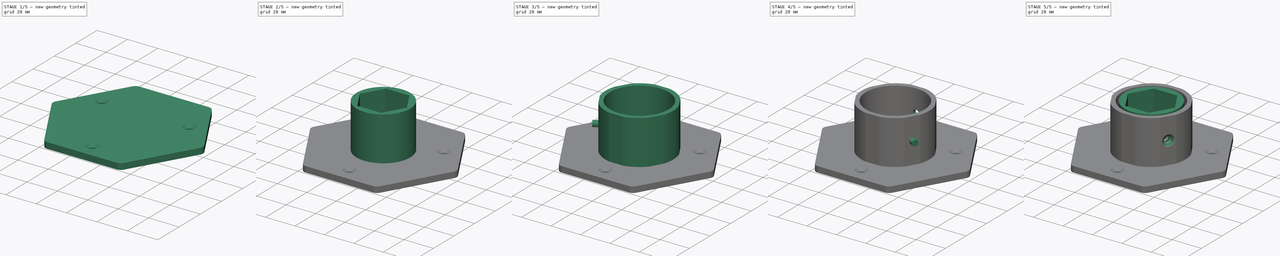
[diagram: build sequence overview — one tinted view per stage of 5, left to right]
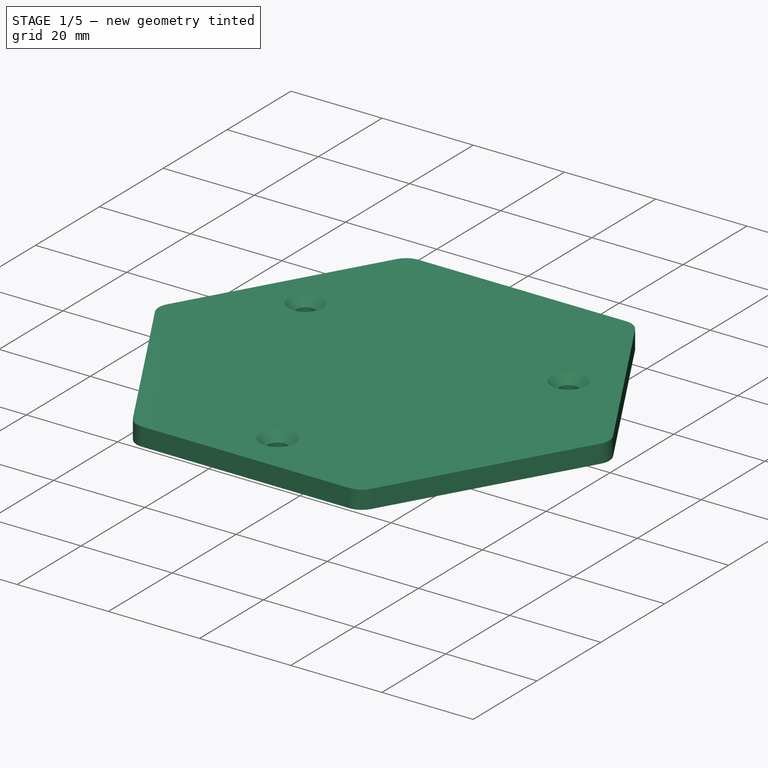
[diagram: stage 1 of 5 — iso view after this stage's code; geometry added in this stage tinted green]
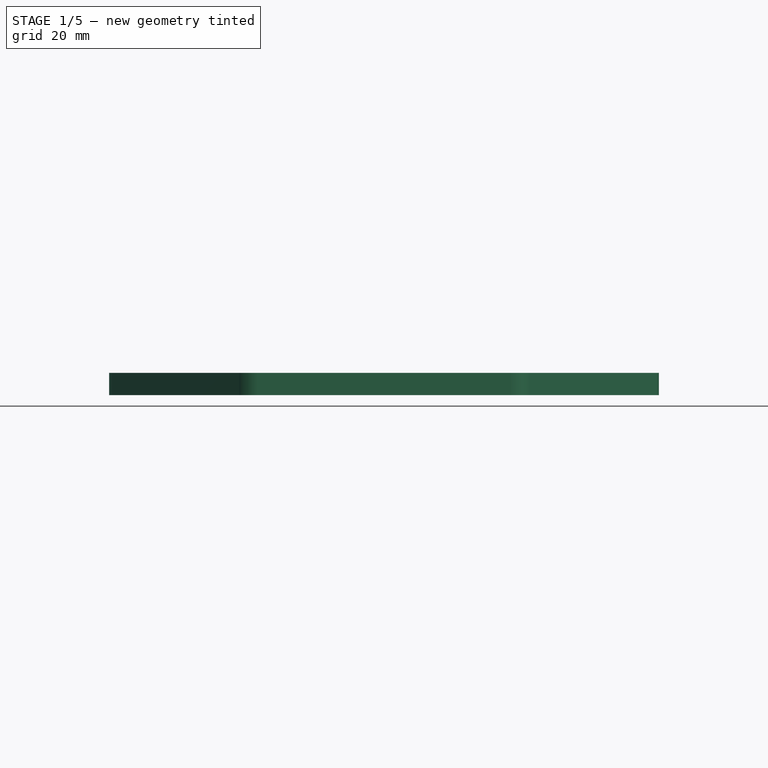
[diagram: stage 1 of 5 — front view after this stage's code; geometry added in this stage tinted green]
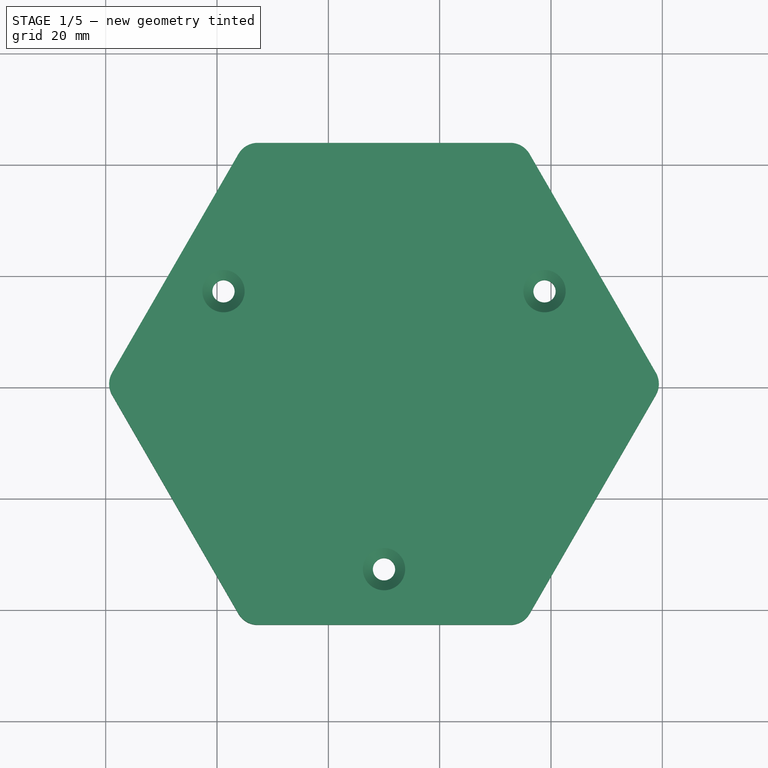
[diagram: stage 1 of 5 — top view after this stage's code; geometry added in this stage tinted green]
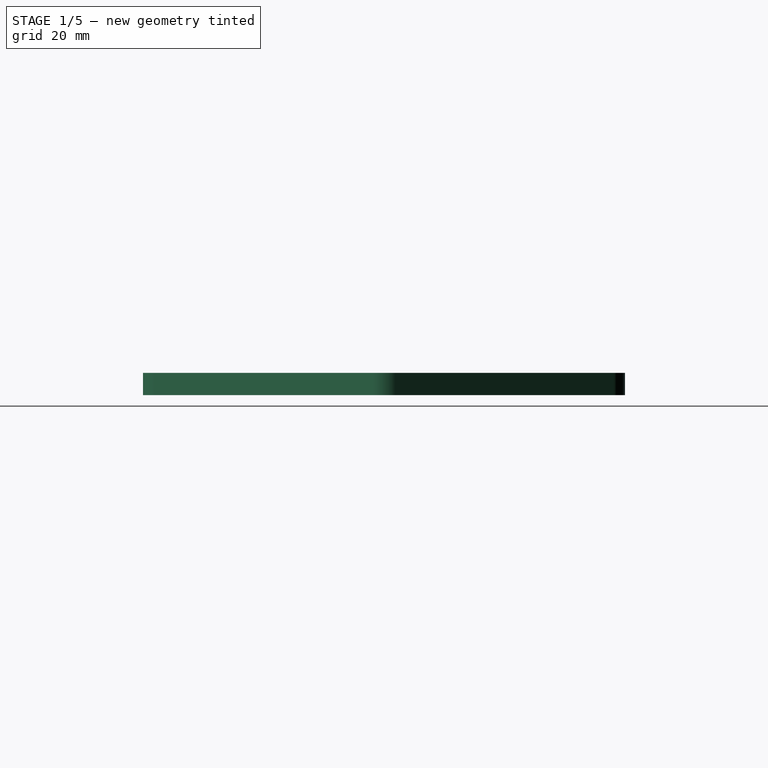
[diagram: stage 1 of 5 — right view after this stage's code; geometry added in this stage tinted green]
FCSTD DOCUMENT  (FreeCAD 0.20R29177 (Git))
Label: TableLeg_Mount
License: All rights reserved
LicenseURL: http://en.wikipedia.org/wiki/All_rights_reserved
objects: Sketcher::SketchObject×10, Part::Extrusion×10, Part::Cut×10, App::MeasureDistance×4, Part::Chamfer×2, Part::Fillet×1
note: 33 computed .brp shape members not serialized (recipe doc carries the construction recipe); baked Part::Feature solids carry a one-line shape summary decoded from their .brp

FEATURE [Sketcher::SketchObject] Sketch
  FullyConstrained = true
  sketch-geometry (7):
    g0: LineSegment StartX=120 StartY=60.6218 StartZ=0 EndX=95 EndY=103.923 EndZ=0
    g1: LineSegment StartX=95 StartY=103.923 StartZ=0 EndX=45 EndY=103.923 EndZ=0
    g2: LineSegment StartX=45 StartY=103.923 StartZ=0 EndX=20 EndY=60.6218 EndZ=0
    g3: LineSegment StartX=20 StartY=60.6218 StartZ=0 EndX=45 EndY=17.3205 EndZ=0
    g4: LineSegment StartX=45 StartY=17.3205 StartZ=0 EndX=95 EndY=17.3205 EndZ=0
    g5: LineSegment StartX=95 StartY=17.3205 StartZ=0 EndX=120 EndY=60.6218 EndZ=0
    g6: Circle CenterX=70 CenterY=60.6218 CenterZ=0 NormalX=0 NormalY=0 NormalZ=1 AngleXU=0 Radius=50
  constraints (17):
    c: Coincident(g0,g1)
    c: Coincident(g1,g2)
    c: Coincident(g2,g3)
    c: Coincident(g3,g4)
    c: Coincident(g4,g5)
    c: Coincident(g5,g0)
    c: Equal(g0, g1-g5) x5
    c: PointOnObject(g0,g6)
    c: PointOnObject(g1,g6)
    c: PointOnObject(g2,g6)
    c: PointOnObject(g3,g6)
    c: PointOnObject(g4,g6)
    c: PointOnObject(g5,g6)
    c: Distance(g4) = 50
    c: Parallel(g4,g-1)
    c: DistanceX(g6) = 70
    c: DistanceY(g6) = 60.6218
FEATURE [Part::Extrusion] Extrude
  Base = -> Sketch
  Dir = (0,0,1)
  DirMode = 2
  FaceMakerClass = Part::FaceMakerBullseye
  LengthFwd = 4
  LengthRev = 0
  Solid = true
  Symmetric = false
FEATURE [Sketcher::SketchObject] Sketch009
  ExternalGeometry = -> [Extrude]
  FullyConstrained = true
  MapMode = 5
  Placement = pos=(0,0,4) rot=(0,0,1;0rad)
  Support = -> [Extrude]
  sketch-geometry (9):
    g0: Circle CenterX=98.8397 CenterY=77.2724 CenterZ=0 NormalX=0 NormalY=0 NormalZ=1 AngleXU=0 Radius=2
    g1: Circle CenterX=41.1603 CenterY=77.2724 CenterZ=0 NormalX=0 NormalY=0 NormalZ=1 AngleXU=0 Radius=2
    g2: Circle CenterX=70 CenterY=27.3205 CenterZ=0 NormalX=0 NormalY=0 NormalZ=1 AngleXU=0 Radius=2
    g3: LineSegment StartX=41.1603 StartY=77.2724 StartZ=0 EndX=45 EndY=103.923 EndZ=0
    g4: LineSegment StartX=20 StartY=60.6218 StartZ=0 EndX=41.1603 EndY=77.2724 EndZ=0
    g5: LineSegment StartX=95 StartY=103.923 StartZ=0 EndX=98.8397 EndY=77.2724 EndZ=0
    g6: LineSegment StartX=120 StartY=60.6218 StartZ=0 EndX=98.8397 EndY=77.2724 EndZ=0
    g7: LineSegment StartX=70 StartY=27.3205 StartZ=0 EndX=45 EndY=17.3205 EndZ=0
    g8: LineSegment StartX=70 StartY=27.3205 StartZ=0 EndX=95 EndY=17.3205 EndZ=0
  constraints (21):
    c: Diameter(g1) = 4
    c: Diameter(g0) = 4
    c: Diameter(g2) = 4
    c: Distance(g1,g-3) = 10
    c: Distance(g0,g-4) = 10
    c: Distance(g2,g-5) = 10
    c: Coincident(g3,g1)
    c: Coincident(g3,g-3)
    c: Coincident(g4,g-3)
    c: Coincident(g4,g1)
    c: Equal(g3,g4)
    c: Coincident(g5,g-4)
    c: Coincident(g5,g0)
    c: Coincident(g6,g-4)
    c: Coincident(g6,g0)
    c: Equal(g5,g6)
    c: Coincident(g7,g2)
    c: Coincident(g7,g-5)
    c: Coincident(g8,g2)
    c: Coincident(g8,g-5)
    c: Equal(g8,g7)
FEATURE [Part::Extrusion] Extrude010
  Base = -> Sketch009
  Dir = (0,0,1)
  DirMode = 2
  FaceMakerClass = Part::FaceMakerBullseye
  LengthFwd = -10
  LengthRev = 0
  Solid = true
  Symmetric = false
FEATURE [Part::Cut] Cut009
  Base = -> Extrude
  Tool = -> Extrude010
FEATURE [Part::Chamfer] Chamfer001
  Base = -> Cut009
  Edges = 3 edges r=1.8: [Edge20,Edge21,Edge22]
FEATURE [App::MeasureDistance] Distance003  label="Distance: 7,64 mm"
  Distance = 7.63668
  P1 = (98.8035,81.0447,4)
  P2 = (98.858,73.4082,4)
FEATURE [Part::Fillet] Fillet
  Base = -> Chamfer001
  Edges = 6 edges r=4: [Edge12,Edge13,Edge15,Edge17,Edge19,Edge21]
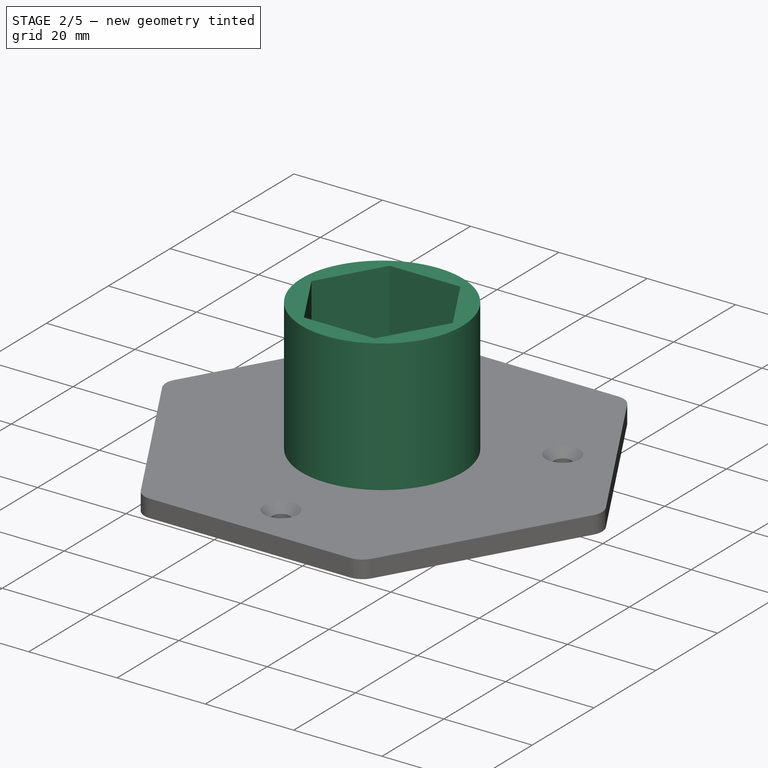
[diagram: stage 2 of 5 — iso view after this stage's code; geometry added in this stage tinted green]
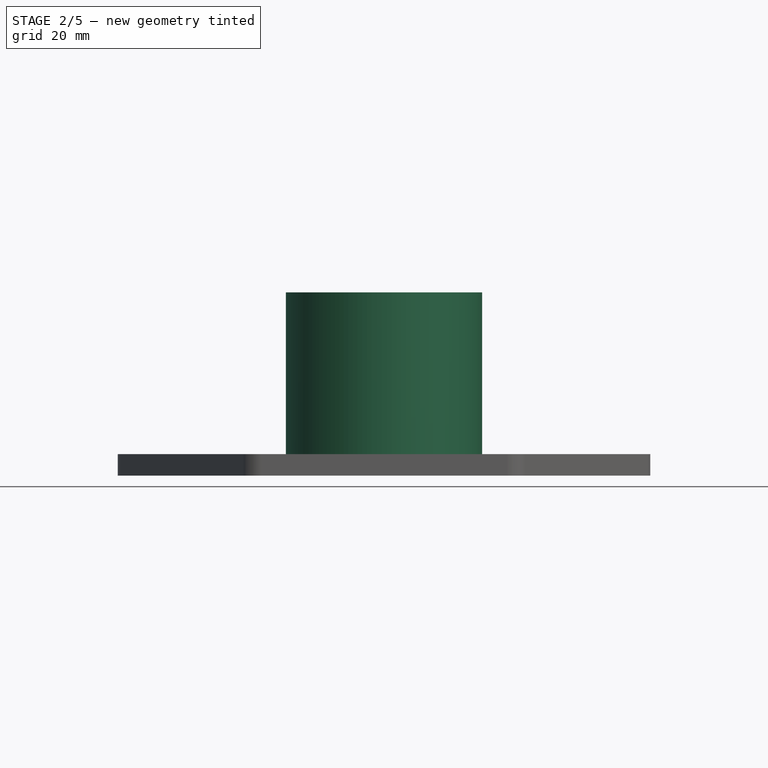
[diagram: stage 2 of 5 — front view after this stage's code; geometry added in this stage tinted green]
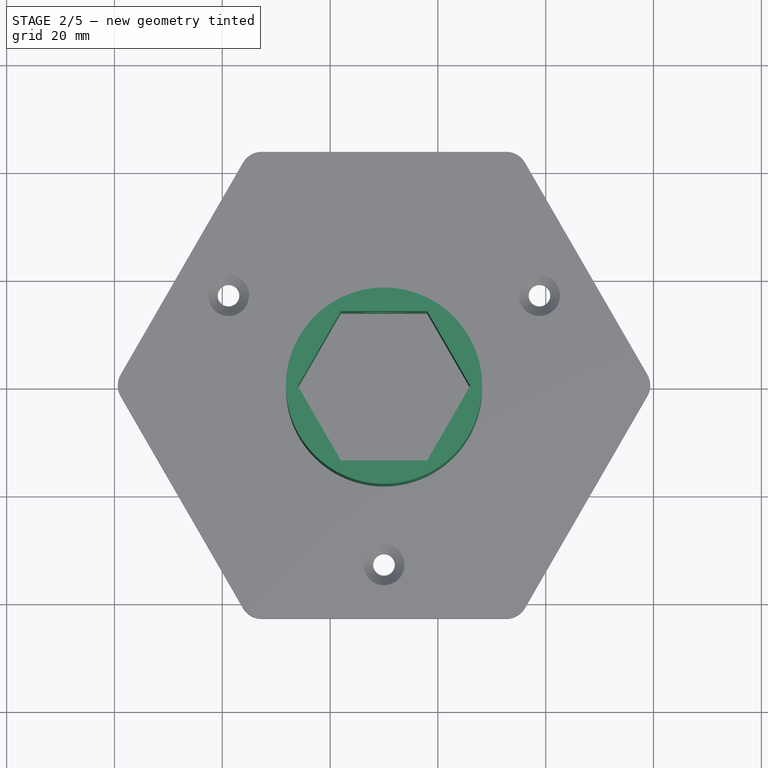
[diagram: stage 2 of 5 — top view after this stage's code; geometry added in this stage tinted green]
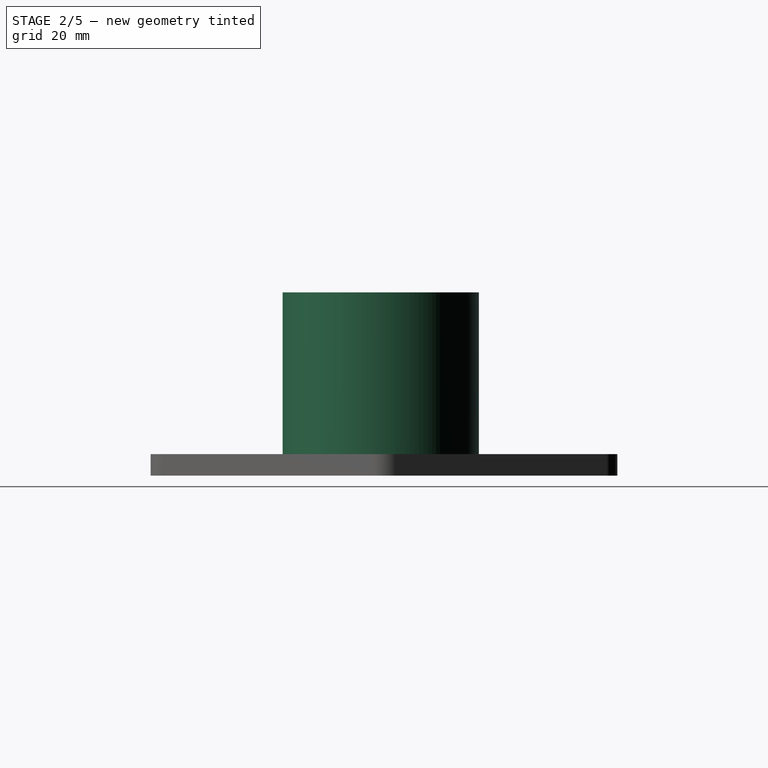
[diagram: stage 2 of 5 — right view after this stage's code; geometry added in this stage tinted green]
FEATURE [Sketcher::SketchObject] Sketch001
  FullyConstrained = true
  MapMode = 5
  Placement = pos=(0,0,4) rot=(0,0,1;0rad)
  Support = -> [Extrude]
  sketch-geometry (8):
    g0: Circle CenterX=70 CenterY=60.02 CenterZ=0 NormalX=0 NormalY=0 NormalZ=1 AngleXU=0 Radius=18.2
    g1: LineSegment StartX=78 StartY=46.1636 StartZ=0 EndX=86 EndY=60.02 EndZ=0
    g2: LineSegment StartX=86 StartY=60.02 StartZ=0 EndX=78 EndY=73.8764 EndZ=0
    g3: LineSegment StartX=78 StartY=73.8764 StartZ=0 EndX=62 EndY=73.8764 EndZ=0
    g4: LineSegment StartX=62 StartY=73.8764 StartZ=0 EndX=54 EndY=60.02 EndZ=0
    g5: LineSegment StartX=54 StartY=60.02 StartZ=0 EndX=62 EndY=46.1636 EndZ=0
    g6: LineSegment StartX=62 StartY=46.1636 StartZ=0 EndX=78 EndY=46.1636 EndZ=0
    g7: Circle CenterX=70 CenterY=60.02 CenterZ=0 NormalX=0 NormalY=0 NormalZ=1 AngleXU=0 Radius=16
  constraints (19):
    c: Coincident(g1,g2)
    c: Coincident(g2,g3)
    c: Coincident(g3,g4)
    c: Coincident(g4,g5)
    c: Coincident(g5,g6)
    c: Coincident(g6,g1)
    c: Equal(g1, g2-g6) x5
    c: PointOnObject(g1,g7)
    c: PointOnObject(g2,g7)
    c: PointOnObject(g3,g7)
    c: PointOnObject(g4,g7)
    c: PointOnObject(g5,g7)
    c: PointOnObject(g6,g7)
    c: Coincident(g7,g0)
    c: Parallel(g6,g-1)
    c: DistanceX(g6,g6) = 16
    c: DistanceX(g-1,g0) = 70
    c: DistanceY(g-1,g0) = 60.02  'center of hex'
    c: Diameter(g0) = 36.4
FEATURE [Part::Extrusion] Extrude001
  Base = -> Sketch001
  Dir = (0,0,1)
  DirMode = 2
  FaceMakerClass = Part::FaceMakerBullseye
  LengthFwd = 30
  LengthRev = 0
  Solid = true
  Symmetric = false
FEATURE [Sketcher::SketchObject] Sketch003
  FullyConstrained = false
  MapMode = 5
  Placement = pos=(0,73.8764,0) rot=(1,0,0;1.5708rad)
  Support = -> [Extrude001]
  sketch-geometry (9):
    g0: LineSegment StartX=70.0252 StartY=14.9159 StartZ=0 EndX=73.5252 EndY=16.9366 EndZ=0
    g1: LineSegment StartX=73.5252 StartY=16.9366 StartZ=0 EndX=73.5252 EndY=20.9781 EndZ=0
    g2: LineSegment StartX=73.5252 StartY=20.9781 StartZ=0 EndX=70.0252 EndY=22.9988 EndZ=0
    g3: LineSegment StartX=70.0252 StartY=22.9988 StartZ=0 EndX=66.5252 EndY=20.9781 EndZ=0
    g4: LineSegment StartX=66.5252 StartY=20.9781 StartZ=0 EndX=66.5252 EndY=16.9366 EndZ=0
    g5: LineSegment StartX=66.5252 StartY=16.9366 StartZ=0 EndX=70.0252 EndY=14.9159 EndZ=0
    g6: Circle CenterX=70.0252 CenterY=18.9573 CenterZ=0 NormalX=0 NormalY=0 NormalZ=1 AngleXU=0 Radius=4.04145
    g7: LineSegment StartX=61.9994 StartY=3.99744 StartZ=0 EndX=78.068 EndY=33.949 EndZ=0
    g8: LineSegment StartX=62.0271 StartY=33.9775 StartZ=0 EndX=77.998 EndY=3.98473 EndZ=0
  constraints (17):
    c: Coincident(g0,g1)
    c: Coincident(g1,g2)
    c: Coincident(g2,g3)
    c: Coincident(g3,g4)
    c: Coincident(g4,g5)
    c: Coincident(g5,g0)
    c: Equal(g0, g1-g5) x5
    c: PointOnObject(g0,g6)
    c: PointOnObject(g1,g6)
    c: PointOnObject(g2,g6)
    c: PointOnObject(g3,g6)
    c: PointOnObject(g4,g6)
    c: PointOnObject(g5,g6)
    c: DistanceX(g4,g0) = 7
    c: Parallel(g4,g-2)
    c: PointOnObject(g6,g7)
    c: PointOnObject(g6,g8)
FEATURE [Sketcher::SketchObject] Sketch004
  FullyConstrained = true
  MapMode = 5
  Placement = pos=(66.4894,38.3877,0) rot=(0.377964,0.654654,0.654654;2.41886rad)
  Support = -> [Extrude001]
  sketch-geometry (9):
    g0: LineSegment StartX=16.9806 StartY=14.9569 StartZ=0 EndX=20.4806 EndY=16.9776 EndZ=0
    g1: LineSegment StartX=20.4806 StartY=16.9776 StartZ=0 EndX=20.4806 EndY=21.0191 EndZ=0
    g2: LineSegment StartX=20.4806 StartY=21.0191 StartZ=0 EndX=16.9806 EndY=23.0398 EndZ=0
    g3: LineSegment StartX=16.9806 StartY=23.0398 StartZ=0 EndX=13.4806 EndY=21.0191 EndZ=0
    g4: LineSegment StartX=13.4806 StartY=21.0191 StartZ=0 EndX=13.4806 EndY=16.9776 EndZ=0
    g5: LineSegment StartX=13.4806 StartY=16.9776 StartZ=0 EndX=16.9806 EndY=14.9569 EndZ=0
    g6: Circle CenterX=16.9806 CenterY=18.9983 CenterZ=0 NormalX=0 NormalY=0 NormalZ=1 AngleXU=0 Radius=4.04145
    g7: LineSegment StartX=8.97728 StartY=3.98646 StartZ=0 EndX=24.9739 EndY=33.9914 EndZ=0
    g8: LineSegment StartX=8.98294 StartY=33.9983 StartZ=0 EndX=24.9817 EndY=3.99209 EndZ=0
  constraints (25):
    c: Coincident(g0,g1)
    c: Coincident(g1,g2)
    c: Coincident(g2,g3)
    c: Coincident(g3,g4)
    c: Coincident(g4,g5)
    c: Coincident(g5,g0)
    c: Equal(g0, g1-g5) x5
    c: PointOnObject(g0,g6)
    c: PointOnObject(g1,g6)
    c: PointOnObject(g2,g6)
    c: PointOnObject(g3,g6)
    c: PointOnObject(g4,g6)
    c: PointOnObject(g5,g6)
    c: DistanceX(g4,g0) = 7
    c: Parallel(g4,g-2)
    c: DistanceX(g7) = 8.97728
    c: DistanceY(g7) = 3.98646
    c: DistanceX(g7) = 24.9739
    c: DistanceY(g7) = 33.9914
    c: PointOnObject(g6,g7)
    c: DistanceX(g8) = 8.98294
    c: DistanceY(g8) = 33.9983
    c: DistanceX(g8) = 24.9817
    c: DistanceY(g8) = 3.99209
    c: PointOnObject(g6,g8)
FEATURE [App::MeasureDistance] Distance  label="Distance: 99,97 mm"
  Distance = 99.9726
  P1 = (95.0274,103.876,4)
  P2 = (45,17.3205,4)
FEATURE [Sketcher::SketchObject] Sketch005
  FullyConstrained = true
  MapMode = 5
  Placement = pos=(38.5106,-22.2341,0) rot=(-0.377964,0.654654,0.654654;3.86433rad)
  Support = -> [Extrude001]
  sketch-geometry (9):
    g0: LineSegment StartX=-86.9724 StartY=14.9451 StartZ=0 EndX=-83.4724 EndY=16.9658 EndZ=0
    g1: LineSegment StartX=-83.4724 StartY=16.9658 StartZ=0 EndX=-83.4724 EndY=21.0073 EndZ=0
    g2: LineSegment StartX=-83.4724 StartY=21.0073 StartZ=0 EndX=-86.9724 EndY=23.028 EndZ=0
    g3: LineSegment StartX=-86.9724 StartY=23.028 StartZ=0 EndX=-90.4724 EndY=21.0073 EndZ=0
    g4: LineSegment StartX=-90.4724 StartY=21.0073 StartZ=0 EndX=-90.4724 EndY=16.9658 EndZ=0
    g5: LineSegment StartX=-90.4724 StartY=16.9658 StartZ=0 EndX=-86.9724 EndY=14.9451 EndZ=0
    g6: Circle CenterX=-86.9724 CenterY=18.9866 CenterZ=0 NormalX=0 NormalY=0 NormalZ=1 AngleXU=0 Radius=4.04145
    g7: LineSegment StartX=-94.9755 StartY=3.96998 StartZ=0 EndX=-78.9746 EndY=33.9934 EndZ=0
    g8: LineSegment StartX=-94.9781 StartY=33.9985 StartZ=0 EndX=-78.9795 EndY=3.99841 EndZ=0
  constraints (25):
    c: Coincident(g0,g1)
    c: Coincident(g1,g2)
    c: Coincident(g2,g3)
    c: Coincident(g3,g4)
    c: Coincident(g4,g5)
    c: Coincident(g5,g0)
    c: Equal(g0, g1-g5) x5
    c: PointOnObject(g0,g6)
    c: PointOnObject(g1,g6)
    c: PointOnObject(g2,g6)
    c: PointOnObject(g3,g6)
    c: PointOnObject(g4,g6)
    c: PointOnObject(g5,g6)
    c: DistanceX(g4,g0) = 7
    c: Parallel(g4,g-2)
    c: DistanceX(g8) = -78.9795
    c: DistanceY(g8) = 3.99841
    c: DistanceX(g7) = -94.9755
    c: DistanceY(g7) = 3.96998
    c: DistanceX(g7) = -78.9746
    c: DistanceY(g7) = 33.9934
    c: DistanceX(g8) = -94.9781
    c: DistanceY(g8) = 33.9985
    c: PointOnObject(g6,g8)
    c: PointOnObject(g6,g7)
FEATURE [Part::Extrusion] Extrude004
  Base = -> Sketch003
  Dir = (0,-1,2e-16)
  DirMode = 2
  FaceMakerClass = Part::FaceMakerBullseye
  LengthFwd = -2.4
  LengthRev = 0
  Solid = true
  Symmetric = false
FEATURE [Part::Extrusion] Extrude005
  Base = -> Sketch004
  Dir = (0.866025,0.5,1e-16)
  DirMode = 2
  FaceMakerClass = Part::FaceMakerBullseye
  LengthFwd = -2.4
  LengthRev = 0
  Solid = true
  Symmetric = false
FEATURE [App::MeasureDistance] Distance001  label="Distance: 4,32 mm"
  Distance = 4.32339
  P1 = (82.2035,66.5958,34)
  P2 = (85.8336,68.944,34)
FEATURE [Part::Cut] Cut
  Base = -> Extrude001
  Tool = -> Extrude004
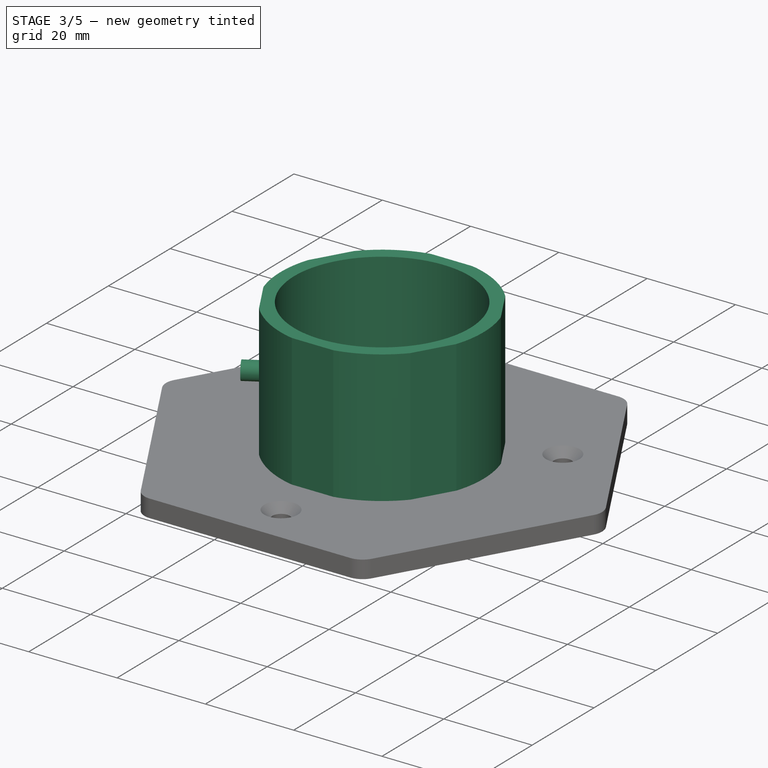
[diagram: stage 3 of 5 — iso view after this stage's code; geometry added in this stage tinted green]
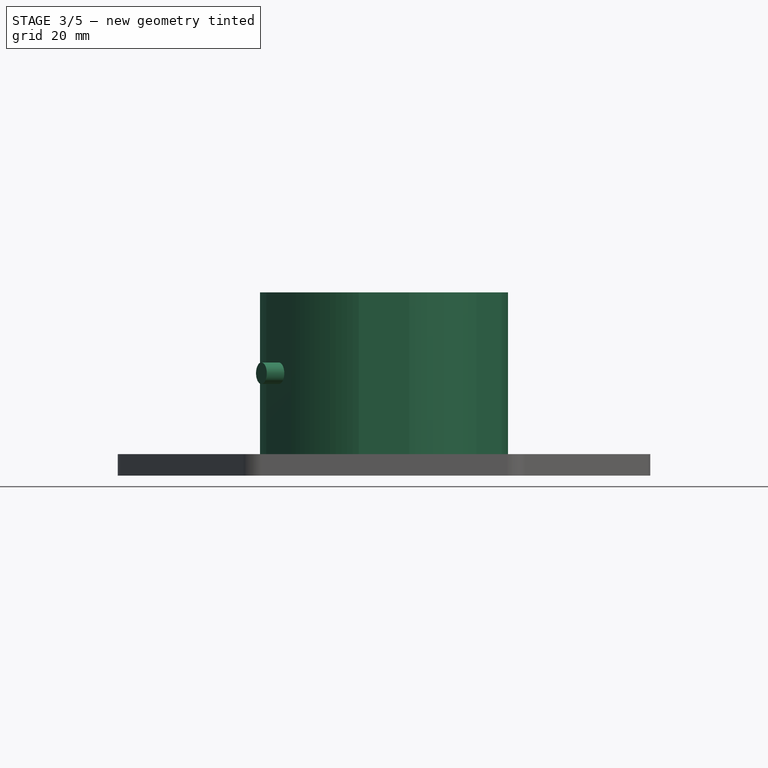
[diagram: stage 3 of 5 — front view after this stage's code; geometry added in this stage tinted green]
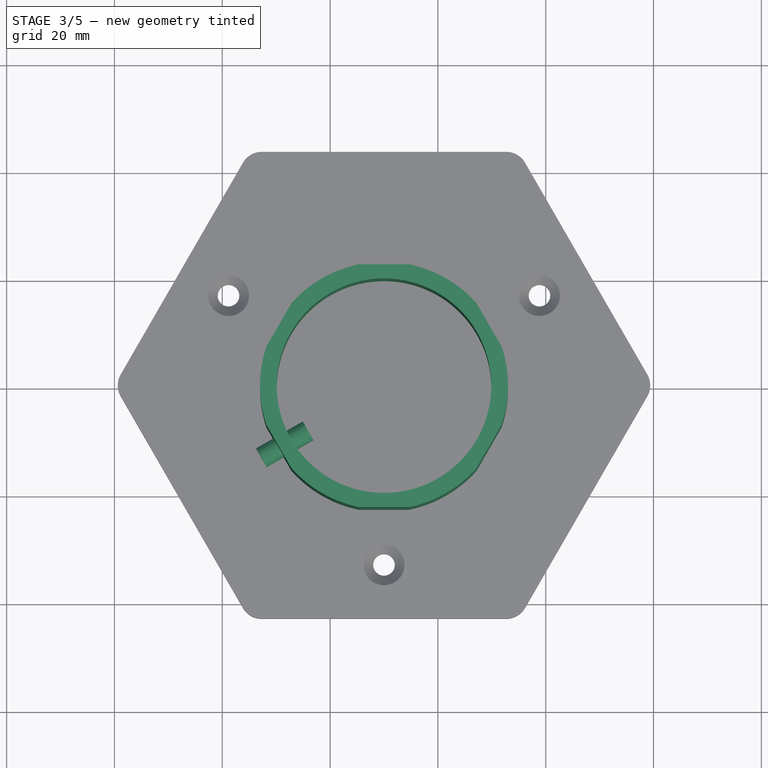
[diagram: stage 3 of 5 — top view after this stage's code; geometry added in this stage tinted green]
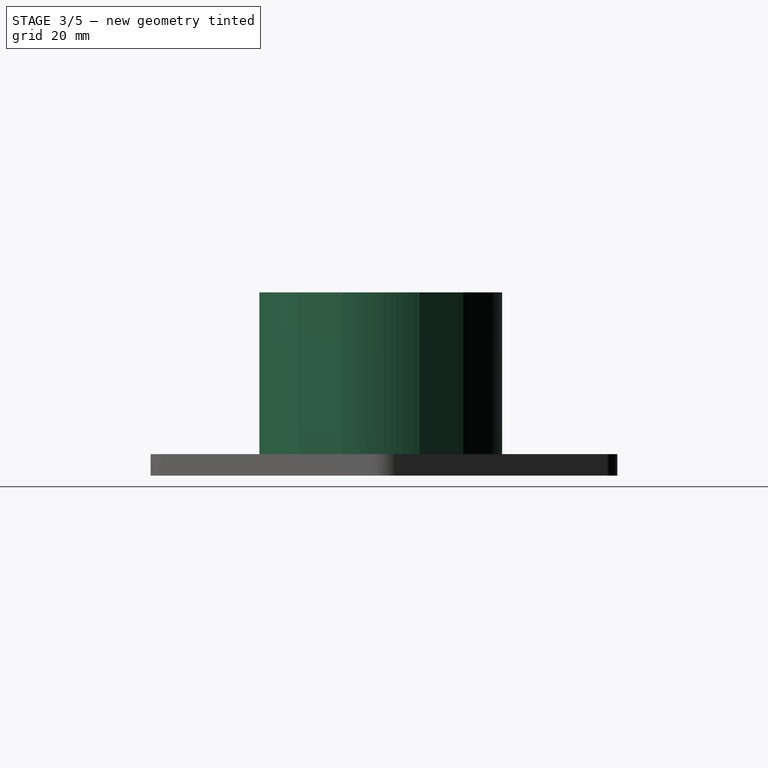
[diagram: stage 3 of 5 — right view after this stage's code; geometry added in this stage tinted green]
FEATURE [Sketcher::SketchObject] Sketch002
  FullyConstrained = false
  MapMode = 5
  Placement = pos=(0,0,4) rot=(0,0,1;0rad)
  Support = -> [Extrude]
  sketch-geometry (14):
    g0: Circle CenterX=70 CenterY=60.02 CenterZ=0 NormalX=0 NormalY=0 NormalZ=1 AngleXU=0 Radius=19.9
    g1: LineSegment StartX=87.1548 StartY=44.6997 StartZ=0 EndX=91.8452 EndY=52.8237 EndZ=0
    g2: LineSegment StartX=91.8452 StartY=67.2163 StartZ=0 EndX=87.1548 EndY=75.3403 EndZ=0
    g3: LineSegment StartX=74.6904 StartY=82.5367 StartZ=0 EndX=65.3096 EndY=82.5367 EndZ=0
    g4: LineSegment StartX=52.8452 StartY=75.3403 StartZ=0 EndX=48.1548 EndY=67.2163 EndZ=0
    g5: LineSegment StartX=48.1548 StartY=52.8237 StartZ=0 EndX=52.8452 EndY=44.6997 EndZ=0
    g6: LineSegment StartX=65.3096 StartY=37.5033 StartZ=0 EndX=74.6904 EndY=37.5033 EndZ=0
    g7: Circle CenterX=70 CenterY=60.02 CenterZ=0 NormalX=0 NormalY=0 NormalZ=1 AngleXU=0 Radius=26
    g8: ArcOfCircle CenterX=70 CenterY=60.02 CenterZ=0 NormalX=0 NormalY=0 NormalZ=1 AngleXU=0 Radius=23 StartAngle=0.728971 EndAngle=1.36542
    g9: ArcOfCircle CenterX=70 CenterY=60.02 CenterZ=0 NormalX=0 NormalY=0 NormalZ=1 AngleXU=0 Radius=23 StartAngle=1.77617 EndAngle=2.41262
    g10: ArcOfCircle CenterX=70 CenterY=60.02 CenterZ=0 NormalX=0 NormalY=0 NormalZ=1 AngleXU=0 Radius=23 StartAngle=2.82337 EndAngle=3.45982
    g11: ArcOfCircle CenterX=70 CenterY=60.02 CenterZ=0 NormalX=0 NormalY=0 NormalZ=1 AngleXU=0 Radius=23 StartAngle=3.87056 EndAngle=4.50702
    g12: ArcOfCircle CenterX=70 CenterY=60.02 CenterZ=0 NormalX=0 NormalY=0 NormalZ=1 AngleXU=0 Radius=23 StartAngle=4.91776 EndAngle=5.55421
    g13: ArcOfCircle CenterX=70 CenterY=60.02 CenterZ=0 NormalX=0 NormalY=0 NormalZ=1 AngleXU=0 Radius=23 StartAngle=5.96496 EndAngle=6.60141
  constraints (30):
    c: DistanceY(g-1,g0) = 60.02
    c: DistanceX(g-1,g0) = 70
    c: Diameter(g0) = 39.8
    c: Coincident(g7,g0)
    c: Parallel(g6,g-1)
    c: Coincident(g8,g0)
    c: Diameter(g8) = 46
    c: Coincident(g2,g8)
    c: Equal(g8,g9)
    c: Coincident(g8,g3)
    c: Coincident(g8,g9)
    c: Coincident(g3,g9)
    c: Equal(g9,g10)
    c: Coincident(g9,g4)
    c: Coincident(g9,g10)
    c: Coincident(g4,g10)
    c: Equal(g10,g11)
    c: Coincident(g10,g5)
    c: Coincident(g10,g11)
    c: Coincident(g5,g11)
    c: PointOnObject(g1,g11)
    c: Equal(g11,g12)
    c: Coincident(g11,g6)
    c: Coincident(g12,g6)
    c: Coincident(g11,g12)
    c: Equal(g12,g13)
    c: PointOnObject(g12,g1)
    c: Coincident(g12,g13)
    c: Coincident(g1,g13)
    c: Coincident(g2,g13)
FEATURE [Part::Extrusion] Extrude002
  Base = -> Sketch002
  Dir = (0,0,1)
  DirMode = 2
  FaceMakerClass = Part::FaceMakerBullseye
  LengthFwd = 30
  LengthRev = 0
  Solid = true
  Symmetric = false
FEATURE [Part::Extrusion] Extrude006
  Base = -> Sketch005
  Dir = (-0.866025,0.5,1e-16)
  DirMode = 2
  FaceMakerClass = Part::FaceMakerBullseye
  LengthFwd = -2.4
  LengthRev = 0
  Solid = true
  Symmetric = false
FEATURE [Part::Cut] Cut001
  Base = -> Cut
  Tool = -> Extrude005
FEATURE [Part::Cut] Cut002
  Base = -> Cut001
  Tool = -> Extrude006
FEATURE [Part::Extrusion] Extrude009
  Base = -> Sketch008
  Dir = (0.866025,0.5,2e-16)
  DirMode = 2
  FaceMakerClass = Part::FaceMakerBullseye
  LengthFwd = -10
  LengthRev = 0
  Solid = true
  Symmetric = false
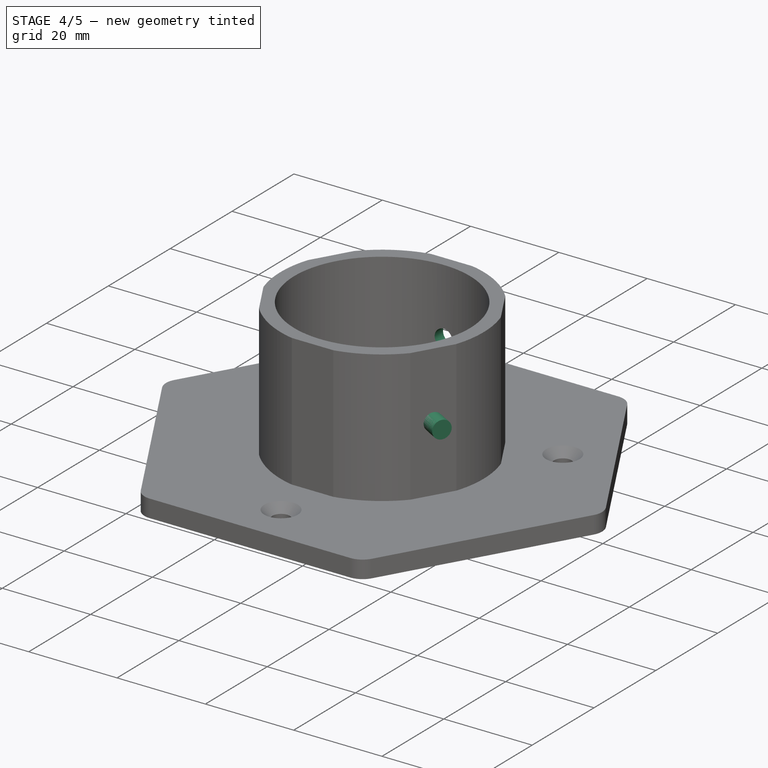
[diagram: stage 4 of 5 — iso view after this stage's code; geometry added in this stage tinted green]
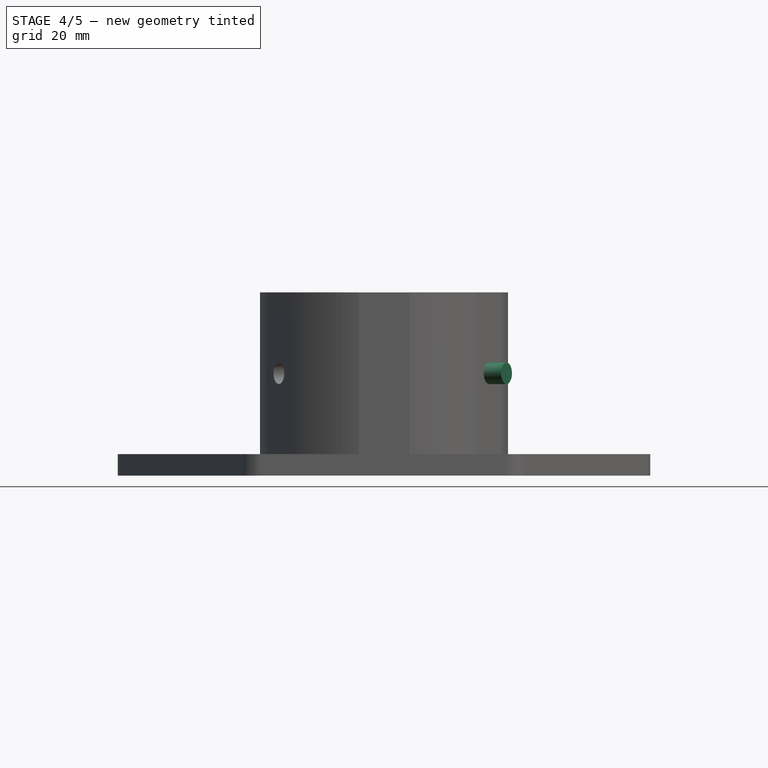
[diagram: stage 4 of 5 — front view after this stage's code; geometry added in this stage tinted green]
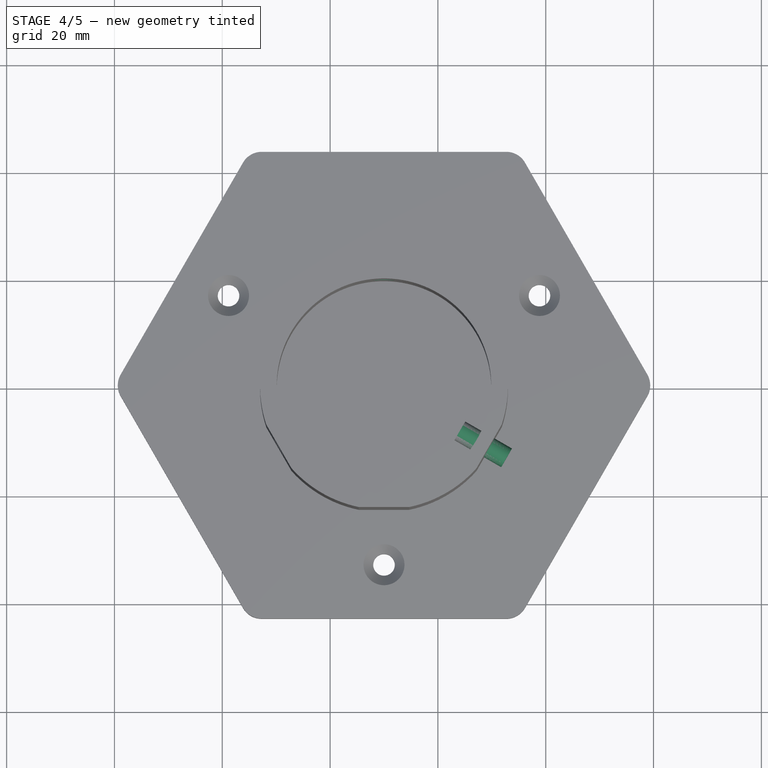
[diagram: stage 4 of 5 — top view after this stage's code; geometry added in this stage tinted green]
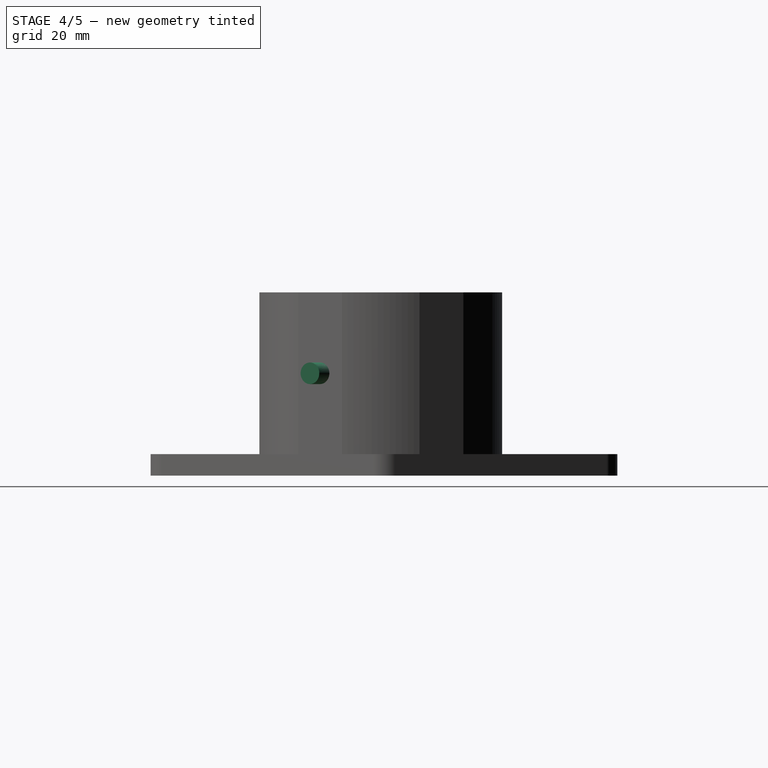
[diagram: stage 4 of 5 — right view after this stage's code; geometry added in this stage tinted green]
FEATURE [Sketcher::SketchObject] Sketch006
  ExternalGeometry = -> [Cut002]
  FullyConstrained = true
  MapMode = 5
  Placement = pos=(0,76.2764,0) rot=(1,0,0;1.5708rad)
  Support = -> [Cut002]
  sketch-geometry (1):
    g0: Circle CenterX=70.0252 CenterY=18.9573 CenterZ=0 NormalX=0 NormalY=0 NormalZ=1 AngleXU=0 Radius=2
  constraints (3):
    c: Diameter(g0) = 4
    c: Distance(g0,g-3) = 3.5
    c: Distance(g0,g-4) = 3.5
FEATURE [App::MeasureDistance] Distance002  label="Distance: 8,57 mm"
  Distance = 8.57297
  P1 = (81.8975,52.7332,34)
  P2 = (89.2012,48.2442,34)
FEATURE [Sketcher::SketchObject] Sketch007
  ExternalGeometry = -> [Cut002]
  FullyConstrained = true
  MapMode = 5
  Placement = pos=(40.589,-23.4341,-1e-16) rot=(-0.377964,0.654654,0.654654;3.86433rad)
  Support = -> [Cut002]
  sketch-geometry (1):
    g0: Circle CenterX=-86.9724 CenterY=18.9866 CenterZ=0 NormalX=0 NormalY=0 NormalZ=1 AngleXU=0 Radius=2
  constraints (3):
    c: Diameter(g0) = 4
    c: Distance(g0,g-3) = 3.5
    c: Distance(g0,g-4) = 3.5
FEATURE [Sketcher::SketchObject] Sketch008
  ExternalGeometry = -> [Cut002]
  FullyConstrained = true
  MapMode = 5
  Placement = pos=(64.411,37.1877,2.46e-14) rot=(0.377964,0.654654,0.654654;2.41886rad)
  Support = -> [Cut002]
  sketch-geometry (1):
    g0: Circle CenterX=16.9806 CenterY=18.9983 CenterZ=0 NormalX=0 NormalY=0 NormalZ=1 AngleXU=0 Radius=2
  constraints (3):
    c: Diameter(g0) = 4
    c: Distance(g0,g-3) = 3.5
    c: Distance(g0,g-4) = 3.5
FEATURE [Part::Extrusion] Extrude007
  Base = -> Sketch006
  Dir = (0,-1,2e-16)
  DirMode = 2
  FaceMakerClass = Part::FaceMakerBullseye
  LengthFwd = -10
  LengthRev = 0
  Solid = true
  Symmetric = false
FEATURE [Part::Extrusion] Extrude008
  Base = -> Sketch007
  Dir = (-0.866025,0.5,0)
  DirMode = 2
  FaceMakerClass = Part::FaceMakerBullseye
  LengthFwd = -10
  LengthRev = 0
  Solid = true
  Symmetric = false
FEATURE [Part::Cut] Cut006
  Base = -> Extrude002
  Tool = -> Extrude009
FEATURE [Part::Cut] Cut007
  Base = -> Cut006
  Tool = -> Extrude007
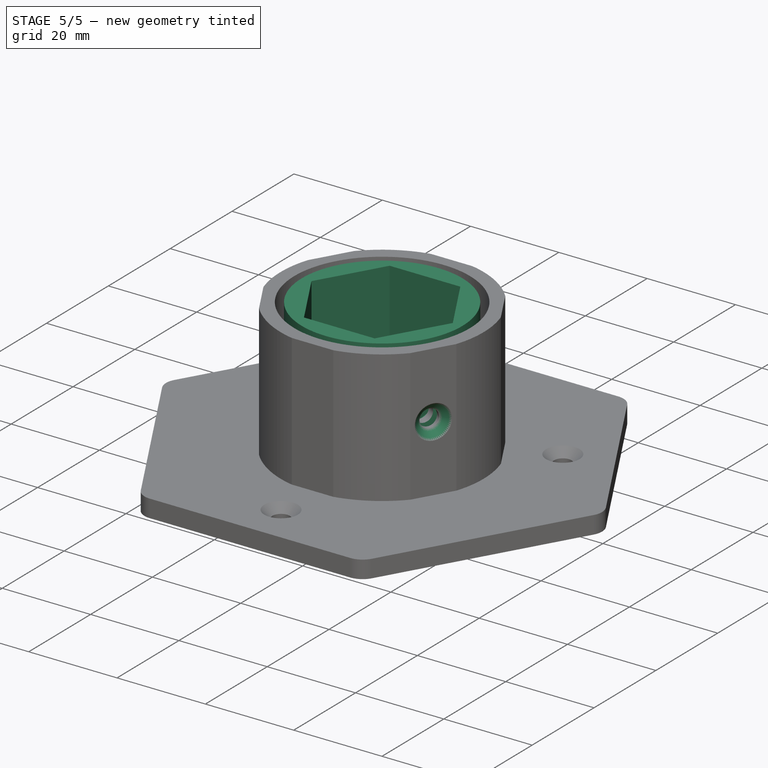
[diagram: stage 5 of 5 — iso view after this stage's code; geometry added in this stage tinted green]
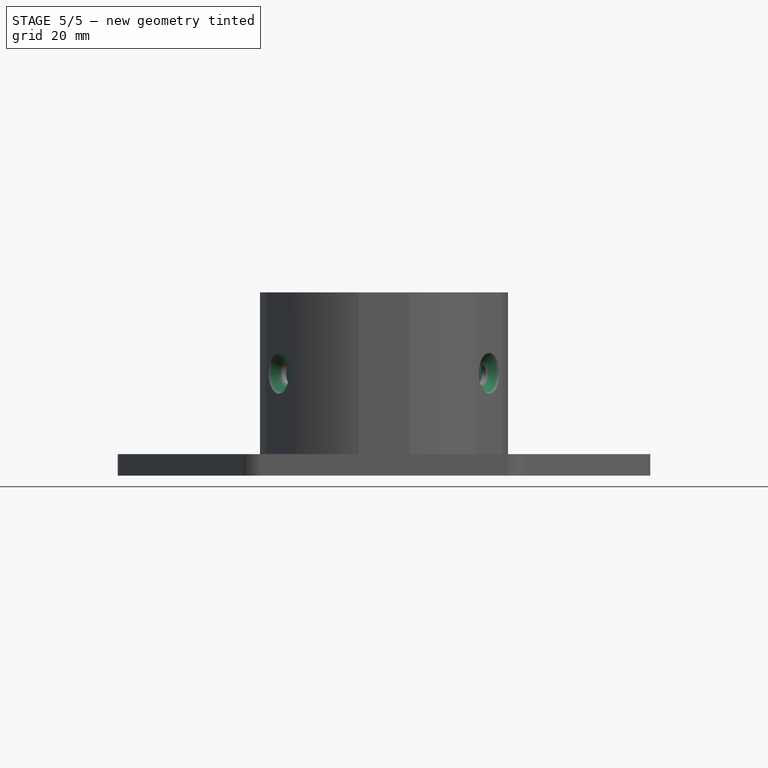
[diagram: stage 5 of 5 — front view after this stage's code; geometry added in this stage tinted green]
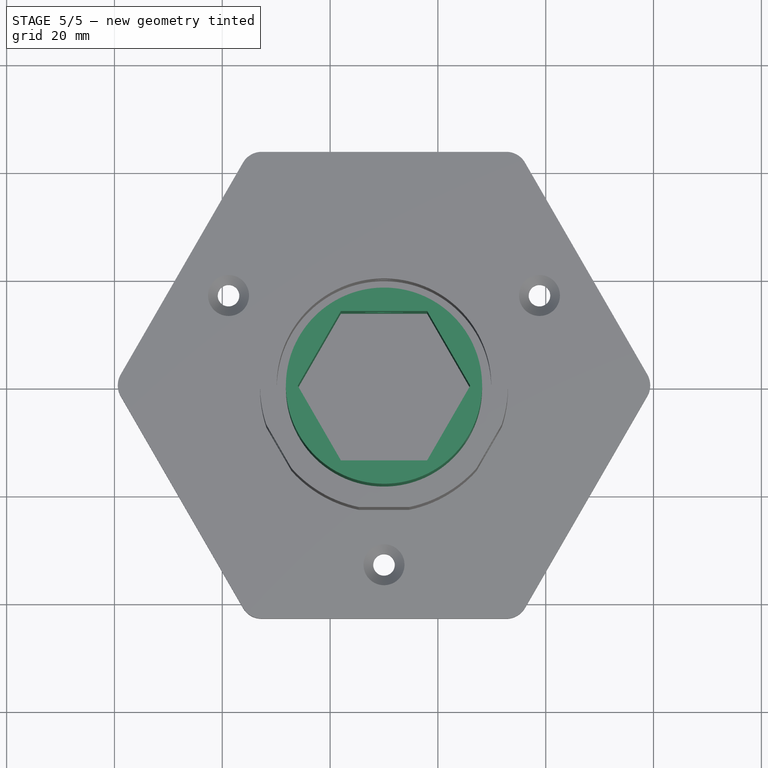
[diagram: stage 5 of 5 — top view after this stage's code; geometry added in this stage tinted green]
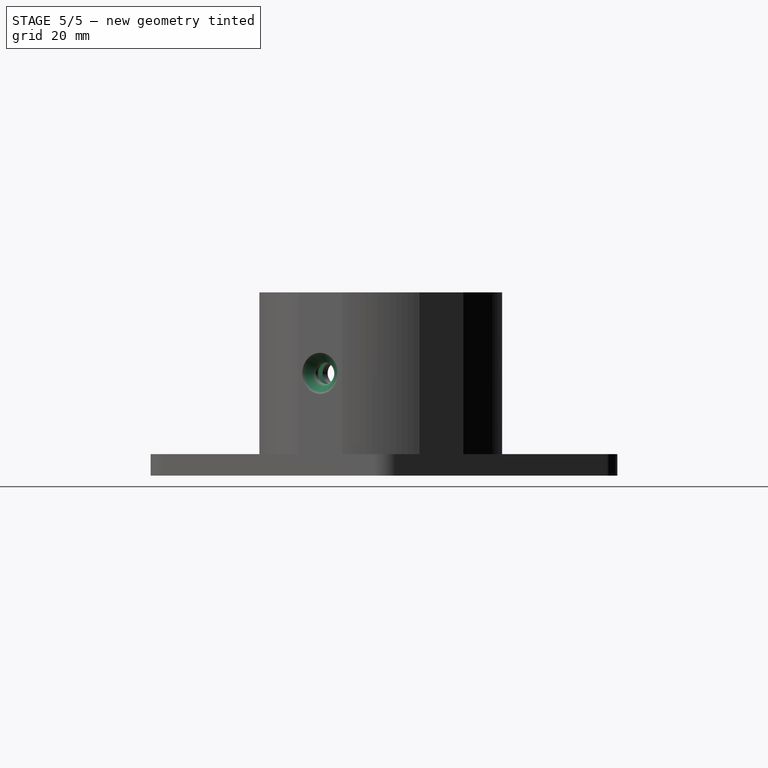
[diagram: stage 5 of 5 — right view after this stage's code; geometry added in this stage tinted green]
FEATURE [Part::Cut] Cut003
  Base = -> Cut002
  Tool = -> Extrude007
FEATURE [Part::Cut] Cut004
  Base = -> Cut003
  Tool = -> Extrude008
FEATURE [Part::Cut] Cut005
  Base = -> Cut004
  Tool = -> Extrude009
FEATURE [Part::Cut] Cut008
  Base = -> Cut007
  Tool = -> Extrude008
FEATURE [Part::Chamfer] Chamfer
  Base = -> Cut008
  Edges = 3 edges r=1.8: [Edge5,Edge38,Edge43]
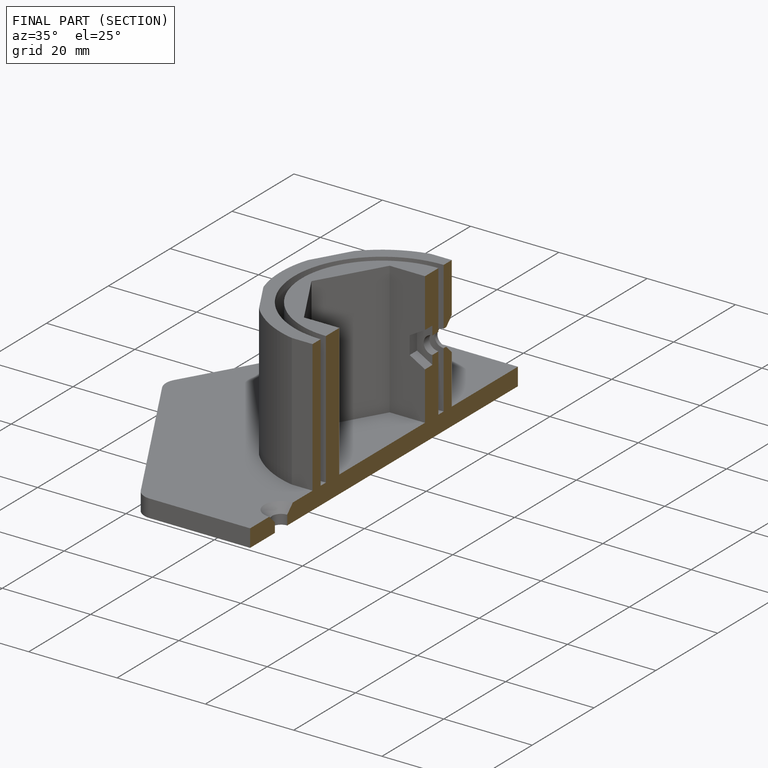
[diagram: finished part — half-section view (interior)]
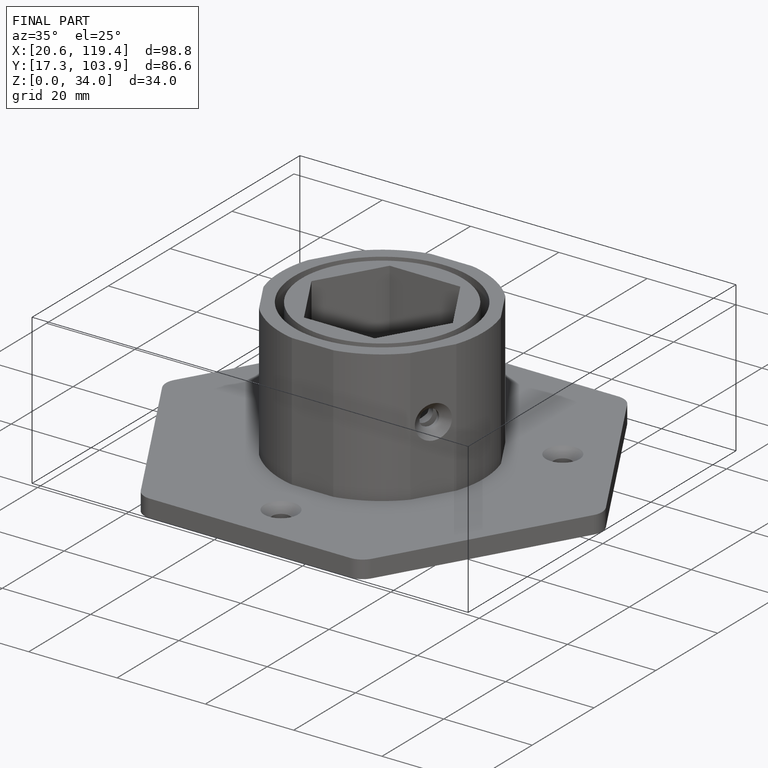
[diagram: finished part — iso view with bounding-box wireframe]
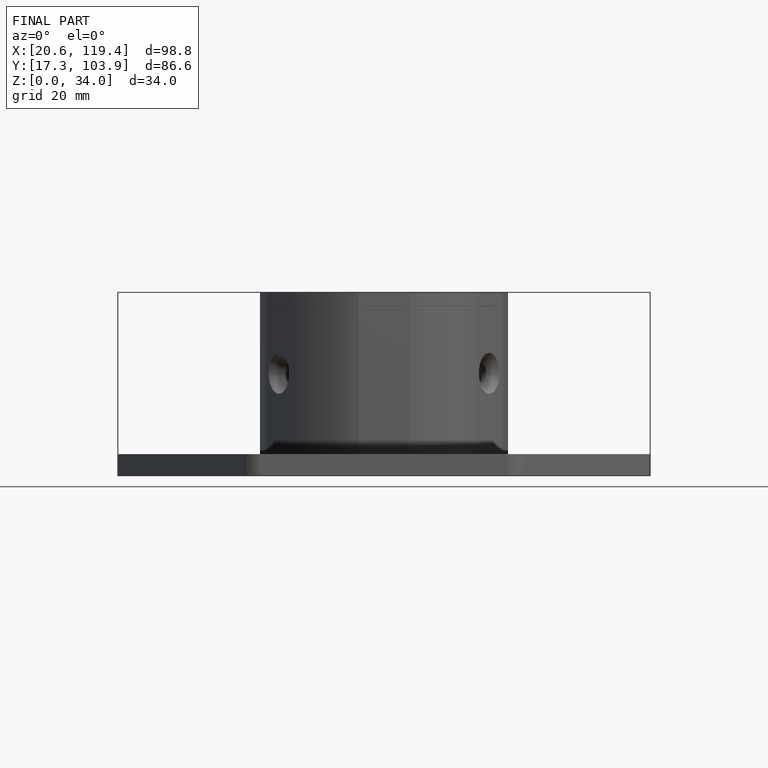
[diagram: finished part — front view with bounding-box wireframe]
